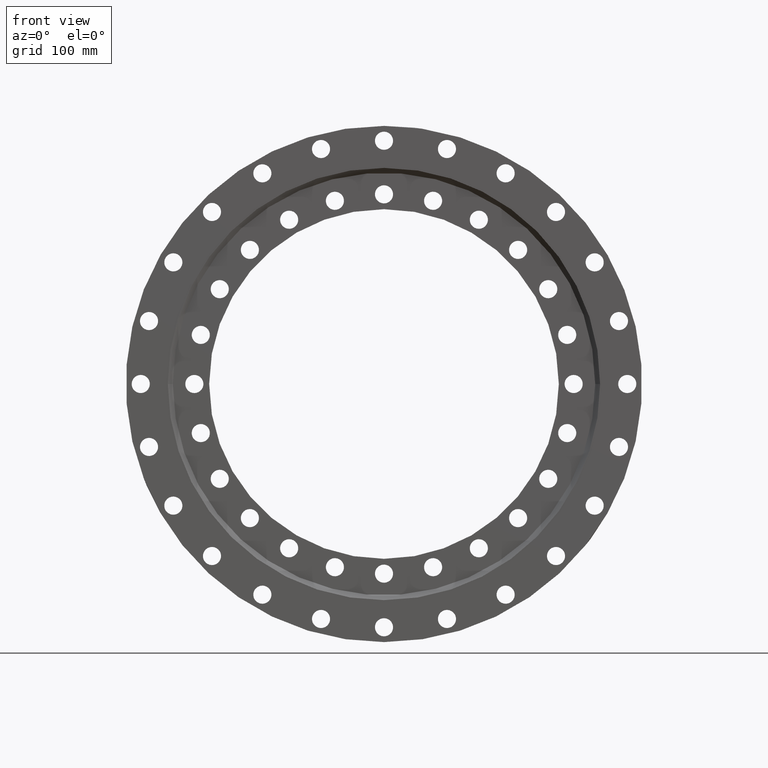
[diagram: clean part render]
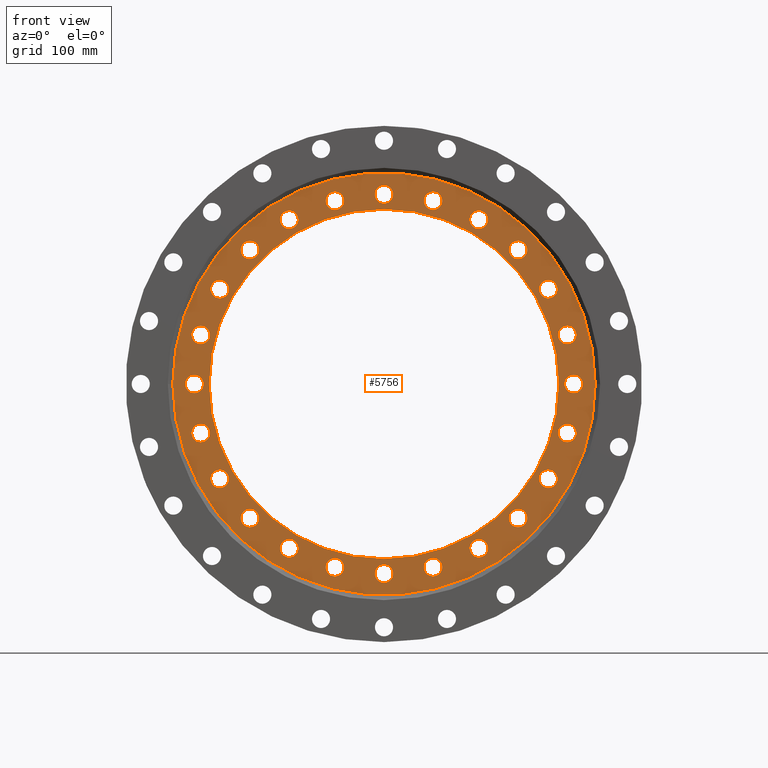
[diagram: same view with one face highlighted and labeled with its STEP entity id]
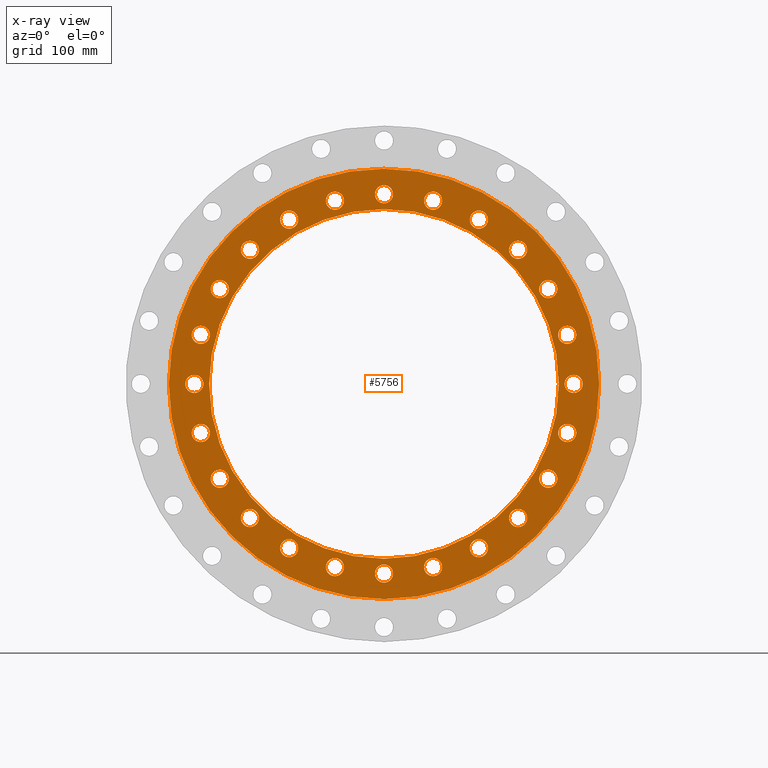
[diagram: x-ray of the same camera — body ghosted, the highlighted face saturated]
A machine part, front view. The second image highlights one B-rep face of the part: STEP entity #5756.
The next image is the same camera in x-ray: the body ghosted, the highlighted face saturated — about 0% of this face is hidden behind the body in this view.
In plain terms, the highlighted planar face has unit normal (-0, 1, -0).
Its self-contained STEP definition (entity closure, byte-faithful):
#34 = AXIS2_PLACEMENT_3D ( 'NONE', #2581, #2655, #503 ) ;
#72 = AXIS2_PLACEMENT_3D ( 'NONE', #2051, #3103, #2125 ) ;
#81 = AXIS2_PLACEMENT_3D ( 'NONE', #5285, #5254, #5266 ) ;
#83 = EDGE_CURVE ( 'NONE', #1986, #4395, #4177, .T. ) ;
#87 = CARTESIAN_POINT ( 'NONE',  ( -230.0000000000000000, -27.00000000000004600, 11.00000000000250300 ) ) ;
#102 = DIRECTION ( 'NONE',  ( 0.7071067811865525700, 0.0000000000000000000, -0.7071067811865424700 ) ) ;
#120 = VERTEX_POINT ( 'NONE', #5295 ) ;
#137 = CARTESIAN_POINT ( 'NONE',  ( -230.0000000000000000, -27.00000000000004600, -10.99999999999749900 ) ) ;
#152 = AXIS2_PLACEMENT_3D ( 'NONE', #1451, #1543, #1533 ) ;
#154 = EDGE_CURVE ( 'NONE', #5328, #1330, #2507, .T. ) ;
#158 = VERTEX_POINT ( 'NONE', #2324 ) ;
#166 = CARTESIAN_POINT ( 'NONE',  ( -222.1629400464850300, -27.00000000000003200, 70.52838037358232300 ) ) ;
#174 = CARTESIAN_POINT ( 'NONE',  ( 230.0000000000000000, -27.00000000000004600, -8.930550670243303100E-013 ) ) ;
#176 = FACE_BOUND ( 'NONE', #2754, .T. ) ;
#194 = EDGE_CURVE ( 'NONE', #2622, #2862, #2386, .T. ) ;
#216 = ORIENTED_EDGE ( 'NONE', *, *, #4190, .T. ) ;
#219 = VERTEX_POINT ( 'NONE', #3167 ) ;
#235 = DIRECTION ( 'NONE',  ( 0.7071067811865400200, 0.0000000000000000000, 0.7071067811865551200 ) ) ;
#261 = VERTEX_POINT ( 'NONE', #2850 ) ;
#298 = ORIENTED_EDGE ( 'NONE', *, *, #3905, .T. ) ;
#307 = AXIS2_PLACEMENT_3D ( 'NONE', #1937, #4606, #4114 ) ;
#311 = ORIENTED_EDGE ( 'NONE', *, *, #3028, .T. ) ;
#319 = AXIS2_PLACEMENT_3D ( 'NONE', #5246, #5248, #5253 ) ;
#354 = AXIS2_PLACEMENT_3D ( 'NONE', #3415, #1686, #4310 ) ;
#355 = CARTESIAN_POINT ( 'NONE',  ( -162.6345596729039200, -27.00000000000003900, 173.6345596729080100 ) ) ;
#366 = ORIENTED_EDGE ( 'NONE', *, *, #2568, .T. ) ;
#371 = CIRCLE ( 'NONE', #34, 11.00000000000000400 ) ;
#379 = DIRECTION ( 'NONE',  ( 9.244463733058732100E-033, 1.000000000000000000, -2.727064569436388400E-017 ) ) ;
#403 = ORIENTED_EDGE ( 'NONE', *, *, #1097, .T. ) ;
#404 = DIRECTION ( 'NONE',  ( -1.540743955509788700E-033, 1.000000000000000000, -2.727064569436389700E-017 ) ) ;
#418 = EDGE_CURVE ( 'NONE', #1330, #5328, #2040, .T. ) ;
#421 = CIRCLE ( 'NONE', #3242, 11.00000000000000000 ) ;
#432 = CIRCLE ( 'NONE', #5852, 10.99999999999999500 ) ;
#437 = EDGE_CURVE ( 'NONE', #1723, #4188, #5084, .T. ) ;
#466 = EDGE_LOOP ( 'NONE', ( #1964, #1066 ) ) ;
#485 = EDGE_CURVE ( 'NONE', #2403, #4164, #4521, .T. ) ;
#503 = DIRECTION ( 'NONE',  ( -0.8660254037844399300, 0.0000000000000000000, 0.4999999999999977200 ) ) ;
#527 = EDGE_CURVE ( 'NONE', #4013, #4661, #2409, .T. ) ;
#543 = DIRECTION ( 'NONE',  ( 0.0000000000000000000, 1.000000000000000000, -2.727064569436389700E-017 ) ) ;
#582 = CARTESIAN_POINT ( 'NONE',  ( -115.0000000000016900, -27.00000000000005300, -199.1858428704199200 ) ) ;
#584 = CIRCLE ( 'NONE', #5718, 11.00000000000001100 ) ;
#601 = CARTESIAN_POINT ( 'NONE',  ( 162.6345596729050300, -27.00000000000005300, -151.6345596729068500 ) ) ;
#604 = EDGE_LOOP ( 'NONE', ( #216, #366 ) ) ;
#623 = EDGE_CURVE ( 'NONE', #4128, #2820, #2611, .T. ) ;
#634 = VERTEX_POINT ( 'NONE', #355 ) ;
#644 = EDGE_CURVE ( 'NONE', #1368, #4068, #5816, .T. ) ;
#672 = CARTESIAN_POINT ( 'NONE',  ( 59.52838037357826600, -27.00000000000005300, -222.1629400464861100 ) ) ;
#675 = VERTEX_POINT ( 'NONE', #2683 ) ;
#678 = CARTESIAN_POINT ( 'NONE',  ( -222.1629400464863700, -27.00000000000004600, -70.52838037357750500 ) ) ;
#681 = EDGE_LOOP ( 'NONE', ( #2114, #2101 ) ) ;
#684 = DIRECTION ( 'NONE',  ( -1.540743955509788700E-033, 1.000000000000000000, -2.727064569436389100E-017 ) ) ;
#690 = DIRECTION ( 'NONE',  ( 0.2588190451025281800, 0.0000000000000000000, -0.9659258262890663100 ) ) ;
#699 = EDGE_CURVE ( 'NONE', #4697, #158, #2421, .T. ) ;
#730 = CARTESIAN_POINT ( 'NONE',  ( 115.0000000000003100, -27.00000000000003900, 188.1858428704206900 ) ) ;
#735 = EDGE_CURVE ( 'NONE', #1204, #3084, #4473, .T. ) ;
#741 = CARTESIAN_POINT ( 'NONE',  ( 3.302913498259840300E-012, -27.00000000000003900, 241.0000000000000300 ) ) ;
#765 = CARTESIAN_POINT ( 'NONE',  ( 162.6345596729050300, -27.00000000000005300, -162.6345596729068500 ) ) ;
#768 = FACE_BOUND ( 'NONE', #1260, .T. ) ;
#773 = CARTESIAN_POINT ( 'NONE',  ( 2.596251214192389200E-014, -27.00000000000005300, -212.0000000000000300 ) ) ;
#787 = DIRECTION ( 'NONE',  ( 0.0000000000000000000, 1.000000000000000000, -2.727064569436390300E-017 ) ) ;
#819 = FACE_BOUND ( 'NONE', #2562, .T. ) ;
#885 = CARTESIAN_POINT ( 'NONE',  ( 199.1858428704203200, -27.00000000000004600, -126.0000000000010200 ) ) ;
#895 = DIRECTION ( 'NONE',  ( 0.0000000000000000000, 0.0000000000000000000, 1.000000000000000000 ) ) ;
#901 = EDGE_CURVE ( 'NONE', #2582, #5563, #584, .T. ) ;
#909 = DIRECTION ( 'NONE',  ( -1.540743955509788700E-033, 1.000000000000000000, -2.727064569436390000E-017 ) ) ;
#916 = EDGE_CURVE ( 'NONE', #5721, #634, #5262, .T. ) ;
#923 = EDGE_CURVE ( 'NONE', #4661, #4013, #432, .T. ) ;
#927 = EDGE_LOOP ( 'NONE', ( #1106, #403 ) ) ;
#942 = CARTESIAN_POINT ( 'NONE',  ( 3.302913498259840300E-012, -27.00000000000003900, 230.0000000000000000 ) ) ;
#949 = FACE_BOUND ( 'NONE', #3996, .T. ) ;
#973 = EDGE_LOOP ( 'NONE', ( #1957, #1939 ) ) ;
#1043 = DIRECTION ( 'NONE',  ( 0.7071067811865525700, 0.0000000000000000000, -0.7071067811865424700 ) ) ;
#1054 = ORIENTED_EDGE ( 'NONE', *, *, #527, .T. ) ;
#1066 = ORIENTED_EDGE ( 'NONE', *, *, #2549, .T. ) ;
#1068 = ORIENTED_EDGE ( 'NONE', *, *, #5727, .T. ) ;
#1071 = DIRECTION ( 'NONE',  ( -3.081487911019577400E-033, 1.000000000000000000, -2.727064569436389700E-017 ) ) ;
#1080 = AXIS2_PLACEMENT_3D ( 'NONE', #1862, #2207, #235 ) ;
#1082 = ORIENTED_EDGE ( 'NONE', *, *, #4048, .T. ) ;
#1083 = FACE_BOUND ( 'NONE', #1472, .T. ) ;
#1097 = EDGE_CURVE ( 'NONE', #5065, #1524, #5838, .T. ) ;
#1106 = ORIENTED_EDGE ( 'NONE', *, *, #4353, .T. ) ;
#1120 = EDGE_LOOP ( 'NONE', ( #2076, #2294 ) ) ;
#1126 = AXIS2_PLACEMENT_3D ( 'NONE', #3987, #2525, #3823 ) ;
#1137 = CARTESIAN_POINT ( 'NONE',  ( -1.695484970912936700E-012, -27.00000000000005300, -241.0000000000000300 ) ) ;
#1146 = CARTESIAN_POINT ( 'NONE',  ( 222.1629400464854600, -27.00000000000004600, -59.52838037358076700 ) ) ;
#1171 = ORIENTED_EDGE ( 'NONE', *, *, #1674, .T. ) ;
#1175 = EDGE_CURVE ( 'NONE', #5392, #2811, #4021, .T. ) ;
#1177 = ORIENTED_EDGE ( 'NONE', *, *, #1955, .T. ) ;
#1181 = ORIENTED_EDGE ( 'NONE', *, *, #1221, .T. ) ;
#1193 = ORIENTED_EDGE ( 'NONE', *, *, #4570, .F. ) ;
#1204 = VERTEX_POINT ( 'NONE', #3309 ) ;
#1206 = ORIENTED_EDGE ( 'NONE', *, *, #4641, .F. ) ;
#1221 = EDGE_CURVE ( 'NONE', #675, #2792, #3404, .T. ) ;
#1228 = EDGE_LOOP ( 'NONE', ( #2325, #1995 ) ) ;
#1229 = FACE_BOUND ( 'NONE', #3444, .T. ) ;
#1233 = CARTESIAN_POINT ( 'NONE',  ( 59.52838037357999900, -27.00000000000003900, 222.1629400464856600 ) ) ;
#1240 = VERTEX_POINT ( 'NONE', #730 ) ;
#1260 = EDGE_LOOP ( 'NONE', ( #2004, #3170 ) ) ;
#1270 = CARTESIAN_POINT ( 'NONE',  ( 230.0000000000000000, -27.00000000000004600, -8.930550670243303100E-013 ) ) ;
#1283 = DIRECTION ( 'NONE',  ( 0.4999999999999888400, 0.0000000000000000000, 0.8660254037844449200 ) ) ;
#1301 = DIRECTION ( 'NONE',  ( -3.081487911019577400E-033, 1.000000000000000000, -2.727064569436389700E-017 ) ) ;
#1312 = DIRECTION ( 'NONE',  ( 1.000000000000000000, 0.0000000000000000000, 1.047444401652938900E-014 ) ) ;
#1314 = EDGE_CURVE ( 'NONE', #158, #4697, #4359, .T. ) ;
#1330 = VERTEX_POINT ( 'NONE', #2938 ) ;
#1358 = FACE_BOUND ( 'NONE', #3035, .T. ) ;
#1368 = VERTEX_POINT ( 'NONE', #137 ) ;
#1413 = CIRCLE ( 'NONE', #1126, 11.00000000000001100 ) ;
#1416 = CARTESIAN_POINT ( 'NONE',  ( 115.0000000000003100, -27.00000000000003900, 199.1858428704207100 ) ) ;
#1422 = ORIENTED_EDGE ( 'NONE', *, *, #916, .T. ) ;
#1423 = CARTESIAN_POINT ( 'NONE',  ( 114.9999999999987800, -27.00000000000005300, -188.1858428704216200 ) ) ;
#1424 = ORIENTED_EDGE ( 'NONE', *, *, #3748, .T. ) ;
#1429 = DIRECTION ( 'NONE',  ( 1.540743955509788700E-033, 1.000000000000000000, -2.727064569436389700E-017 ) ) ;
#1430 = ORIENTED_EDGE ( 'NONE', *, *, #2662, .T. ) ;
#1447 = AXIS2_PLACEMENT_3D ( 'NONE', #2558, #2551, #2180 ) ;
#1451 = CARTESIAN_POINT ( 'NONE',  ( 222.1629400464859400, -27.00000000000003200, 59.52838037357904000 ) ) ;
#1462 = ORIENTED_EDGE ( 'NONE', *, *, #1771, .T. ) ;
#1472 = EDGE_LOOP ( 'NONE', ( #2074, #1462 ) ) ;
#1475 = DIRECTION ( 'NONE',  ( 0.9659258262890708700, 0.0000000000000000000, -0.2588190451025110300 ) ) ;
#1496 = EDGE_CURVE ( 'NONE', #3084, #1204, #4905, .T. ) ;
#1524 = VERTEX_POINT ( 'NONE', #4351 ) ;
#1533 = DIRECTION ( 'NONE',  ( 0.9659258262890655400, 0.0000000000000000000, 0.2588190451025311200 ) ) ;
#1540 = CARTESIAN_POINT ( 'NONE',  ( 162.6345596729050300, -27.00000000000005300, -162.6345596729068500 ) ) ;
#1543 = DIRECTION ( 'NONE',  ( -3.081487911019577400E-033, 1.000000000000000000, -2.727064569436389700E-017 ) ) ;
#1568 = DIRECTION ( 'NONE',  ( 3.081487911019577400E-033, 1.000000000000000000, -2.727064569436389700E-017 ) ) ;
#1585 = VERTEX_POINT ( 'NONE', #2905 ) ;
#1586 = DIRECTION ( 'NONE',  ( 0.0000000000000000000, 1.000000000000000000, -2.727064569436389400E-017 ) ) ;
#1649 = EDGE_LOOP ( 'NONE', ( #1206, #1193 ) ) ;
#1651 = DIRECTION ( 'NONE',  ( 0.5000000000000065500, 0.0000000000000000000, -0.8660254037844348200 ) ) ;
#1654 = AXIS2_PLACEMENT_3D ( 'NONE', #1416, #404, #1283 ) ;
#1673 = DIRECTION ( 'NONE',  ( -1.540743955509788700E-033, 1.000000000000000000, -2.727064569436389700E-017 ) ) ;
#1674 = EDGE_CURVE ( 'NONE', #120, #3547, #421, .T. ) ;
#1675 = VERTEX_POINT ( 'NONE', #1137 ) ;
#1686 = DIRECTION ( 'NONE',  ( -1.540743955509788700E-033, 1.000000000000000000, -2.727064569436390000E-017 ) ) ;
#1691 = CIRCLE ( 'NONE', #1654, 11.00000000000000500 ) ;
#1699 = DIRECTION ( 'NONE',  ( -0.8660254037844366000, 0.0000000000000000000, -0.5000000000000034400 ) ) ;
#1714 = CARTESIAN_POINT ( 'NONE',  ( 199.1858428704203200, -27.00000000000004600, -104.0000000000010200 ) ) ;
#1721 = CIRCLE ( 'NONE', #5301, 11.00000000000001100 ) ;
#1723 = VERTEX_POINT ( 'NONE', #4148 ) ;
#1757 = VERTEX_POINT ( 'NONE', #1942 ) ;
#1767 = EDGE_LOOP ( 'NONE', ( #311, #1430 ) ) ;
#1771 = EDGE_CURVE ( 'NONE', #4764, #4406, #1987, .T. ) ;
#1780 = CARTESIAN_POINT ( 'NONE',  ( 59.52838037357999900, -27.00000000000003900, 233.1629400464856600 ) ) ;
#1797 = DIRECTION ( 'NONE',  ( 3.081487911019577400E-033, 1.000000000000000000, -2.727064569436389700E-017 ) ) ;
#1820 = FACE_BOUND ( 'NONE', #5352, .T. ) ;
#1824 = DIRECTION ( 'NONE',  ( 1.540743955509788700E-033, 1.000000000000000000, -2.727064569436389700E-017 ) ) ;
#1827 = CARTESIAN_POINT ( 'NONE',  ( 59.52838037357999900, -27.00000000000003900, 222.1629400464856600 ) ) ;
#1831 = CARTESIAN_POINT ( 'NONE',  ( 59.52838037357999900, -27.00000000000003900, 211.1629400464856300 ) ) ;
#1840 = DIRECTION ( 'NONE',  ( -0.5000000000000007800, 0.0000000000000000000, 0.8660254037844382600 ) ) ;
#1859 = EDGE_CURVE ( 'NONE', #1675, #3832, #1413, .T. ) ;
#1862 = CARTESIAN_POINT ( 'NONE',  ( 162.6345596729063100, -27.00000000000003900, 162.6345596729055700 ) ) ;
#1922 = EDGE_LOOP ( 'NONE', ( #4027, #1181 ) ) ;
#1937 = CARTESIAN_POINT ( 'NONE',  ( 199.1858428704203200, -27.00000000000004600, -115.0000000000010200 ) ) ;
#1939 = ORIENTED_EDGE ( 'NONE', *, *, #901, .T. ) ;
#1942 = CARTESIAN_POINT ( 'NONE',  ( 222.1629400464859400, -27.00000000000003200, 70.52838037357904000 ) ) ;
#1951 = FACE_BOUND ( 'NONE', #1228, .T. ) ;
#1955 = EDGE_CURVE ( 'NONE', #2389, #3008, #5584, .T. ) ;
#1957 = ORIENTED_EDGE ( 'NONE', *, *, #4011, .T. ) ;
#1962 = ORIENTED_EDGE ( 'NONE', *, *, #485, .T. ) ;
#1964 = ORIENTED_EDGE ( 'NONE', *, *, #3936, .T. ) ;
#1970 = DIRECTION ( 'NONE',  ( 0.9659258262890708700, 0.0000000000000000000, -0.2588190451025110300 ) ) ;
#1974 = ORIENTED_EDGE ( 'NONE', *, *, #2109, .T. ) ;
#1975 = CIRCLE ( 'NONE', #2073, 11.00000000000001600 ) ;
#1986 = VERTEX_POINT ( 'NONE', #601 ) ;
#1987 = CIRCLE ( 'NONE', #3129, 11.00000000000001600 ) ;
#1988 = DIRECTION ( 'NONE',  ( 0.9659258262890655400, 0.0000000000000000000, 0.2588190451025311200 ) ) ;
#1993 = CARTESIAN_POINT ( 'NONE',  ( 222.1629400464854600, -27.00000000000004600, -59.52838037358076700 ) ) ;
#1995 = ORIENTED_EDGE ( 'NONE', *, *, #1175, .T. ) ;
#2003 = DIRECTION ( 'NONE',  ( -3.081487911019577400E-033, 1.000000000000000000, -2.727064569436389100E-017 ) ) ;
#2004 = ORIENTED_EDGE ( 'NONE', *, *, #3527, .T. ) ;
#2009 = ORIENTED_EDGE ( 'NONE', *, *, #418, .T. ) ;
#2011 = DIRECTION ( 'NONE',  ( -3.081487911019577400E-033, 1.000000000000000000, -2.727064569436389700E-017 ) ) ;
#2013 = CIRCLE ( 'NONE', #3804, 11.00000000000000500 ) ;
#2015 = ORIENTED_EDGE ( 'NONE', *, *, #154, .T. ) ;
#2017 = EDGE_CURVE ( 'NONE', #261, #4646, #5591, .T. ) ;
#2037 = CARTESIAN_POINT ( 'NONE',  ( -59.52838037358154800, -27.00000000000005300, -222.1629400464852300 ) ) ;
#2040 = CIRCLE ( 'NONE', #3892, 11.00000000000001600 ) ;
#2051 = CARTESIAN_POINT ( 'NONE',  ( 115.0000000000003100, -27.00000000000003900, 199.1858428704207100 ) ) ;
#2054 = ORIENTED_EDGE ( 'NONE', *, *, #623, .T. ) ;
#2059 = CIRCLE ( 'NONE', #4059, 10.99999999999999800 ) ;
#2068 = CARTESIAN_POINT ( 'NONE',  ( -1.696832082391998900E-012, -27.00000000000005300, -219.0000000000000000 ) ) ;
#2071 = ORIENTED_EDGE ( 'NONE', *, *, #1496, .T. ) ;
#2073 = AXIS2_PLACEMENT_3D ( 'NONE', #3602, #3628, #3331 ) ;
#2074 = ORIENTED_EDGE ( 'NONE', *, *, #2763, .T. ) ;
#2076 = ORIENTED_EDGE ( 'NONE', *, *, #3490, .T. ) ;
#2083 = FACE_BOUND ( 'NONE', #1922, .T. ) ;
#2096 = ORIENTED_EDGE ( 'NONE', *, *, #735, .T. ) ;
#2101 = ORIENTED_EDGE ( 'NONE', *, *, #1314, .T. ) ;
#2109 = EDGE_CURVE ( 'NONE', #4395, #1986, #4514, .T. ) ;
#2114 = ORIENTED_EDGE ( 'NONE', *, *, #699, .T. ) ;
#2125 = DIRECTION ( 'NONE',  ( 0.4999999999999888400, 0.0000000000000000000, 0.8660254037844449200 ) ) ;
#2133 = ORIENTED_EDGE ( 'NONE', *, *, #194, .T. ) ;
#2139 = ORIENTED_EDGE ( 'NONE', *, *, #3108, .T. ) ;
#2154 = CARTESIAN_POINT ( 'NONE',  ( 230.0000000000000000, -27.00000000000004600, -11.00000000000089500 ) ) ;
#2177 = AXIS2_PLACEMENT_3D ( 'NONE', #765, #787, #1043 ) ;
#2180 = DIRECTION ( 'NONE',  ( 0.8660254037844433700, 0.0000000000000000000, -0.4999999999999919500 ) ) ;
#2187 = CIRCLE ( 'NONE', #3207, 11.00000000000000000 ) ;
#2191 = EDGE_LOOP ( 'NONE', ( #2009, #2015 ) ) ;
#2197 = FACE_BOUND ( 'NONE', #1120, .T. ) ;
#2206 = EDGE_LOOP ( 'NONE', ( #4104, #1177 ) ) ;
#2207 = DIRECTION ( 'NONE',  ( -3.081487911019577400E-033, 1.000000000000000000, -2.727064569436389400E-017 ) ) ;
#2209 = FACE_BOUND ( 'NONE', #2191, .T. ) ;
#2232 = AXIS2_PLACEMENT_3D ( 'NONE', #4363, #4361, #4872 ) ;
#2233 = CARTESIAN_POINT ( 'NONE',  ( -162.6345596729074100, -27.00000000000005300, -162.6345596729044600 ) ) ;
#2238 = CIRCLE ( 'NONE', #2372, 11.00000000000000000 ) ;
#2263 = DIRECTION ( 'NONE',  ( 9.244463733058732100E-033, 1.000000000000000000, -2.727064569436389100E-017 ) ) ;
#2278 = ORIENTED_EDGE ( 'NONE', *, *, #2017, .T. ) ;
#2288 = ORIENTED_EDGE ( 'NONE', *, *, #3715, .T. ) ;
#2294 = ORIENTED_EDGE ( 'NONE', *, *, #1859, .T. ) ;
#2297 = ORIENTED_EDGE ( 'NONE', *, *, #3683, .T. ) ;
#2301 = ORIENTED_EDGE ( 'NONE', *, *, #83, .T. ) ;
#2311 = DIRECTION ( 'NONE',  ( 0.0000000000000000000, 1.000000000000000000, -2.727064569436389400E-017 ) ) ;
#2317 = ORIENTED_EDGE ( 'NONE', *, *, #437, .T. ) ;
#2324 = CARTESIAN_POINT ( 'NONE',  ( -162.6345596729074100, -27.00000000000005300, -173.6345596729044900 ) ) ;
#2325 = ORIENTED_EDGE ( 'NONE', *, *, #3863, .T. ) ;
#2327 = FACE_BOUND ( 'NONE', #1767, .T. ) ;
#2328 = CARTESIAN_POINT ( 'NONE',  ( -199.1858428704220800, -27.00000000000004600, -125.9999999999980800 ) ) ;
#2331 = CARTESIAN_POINT ( 'NONE',  ( -222.1629400464863700, -27.00000000000004600, -59.52838037357749800 ) ) ;
#2356 = CIRCLE ( 'NONE', #3121, 11.00000000000001600 ) ;
#2369 = CIRCLE ( 'NONE', #5006, 11.00000000000000500 ) ;
#2372 = AXIS2_PLACEMENT_3D ( 'NONE', #5726, #5229, #5686 ) ;
#2386 = CIRCLE ( 'NONE', #4422, 11.00000000000001600 ) ;
#2389 = VERTEX_POINT ( 'NONE', #4902 ) ;
#2403 = VERTEX_POINT ( 'NONE', #4560 ) ;
#2409 = CIRCLE ( 'NONE', #3995, 10.99999999999999500 ) ;
#2421 = CIRCLE ( 'NONE', #5048, 11.00000000000002000 ) ;
#2454 = AXIS2_PLACEMENT_3D ( 'NONE', #4528, #4621, #4616 ) ;
#2465 = FACE_BOUND ( 'NONE', #3142, .T. ) ;
#2473 = EDGE_CURVE ( 'NONE', #4292, #5069, #4911, .T. ) ;
#2474 = CARTESIAN_POINT ( 'NONE',  ( 59.52838037357826600, -27.00000000000005300, -222.1629400464861100 ) ) ;
#2484 = DIRECTION ( 'NONE',  ( -3.081487911019577400E-033, 1.000000000000000000, -2.727064569436389700E-017 ) ) ;
#2507 = CIRCLE ( 'NONE', #3443, 11.00000000000001600 ) ;
#2525 = DIRECTION ( 'NONE',  ( -2.189528850507526700E-047, 1.000000000000000000, -2.727064569436389100E-017 ) ) ;
#2533 = EDGE_LOOP ( 'NONE', ( #2139, #2133 ) ) ;
#2547 = ORIENTED_EDGE ( 'NONE', *, *, #5071, .T. ) ;
#2549 = EDGE_CURVE ( 'NONE', #3746, #1757, #4921, .T. ) ;
#2551 = DIRECTION ( 'NONE',  ( -3.081487911019577400E-033, 1.000000000000000000, -2.727064569436389100E-017 ) ) ;
#2558 = CARTESIAN_POINT ( 'NONE',  ( 199.1858428704203200, -27.00000000000004600, -115.0000000000010200 ) ) ;
#2562 = EDGE_LOOP ( 'NONE', ( #2301, #1974 ) ) ;
#2566 = DIRECTION ( 'NONE',  ( 0.2588190451025281800, 0.0000000000000000000, -0.9659258262890663100 ) ) ;
#2568 = EDGE_CURVE ( 'NONE', #1240, #5099, #4876, .T. ) ;
#2579 = DIRECTION ( 'NONE',  ( -1.540743955509788700E-033, 1.000000000000000000, -2.727064569436389100E-017 ) ) ;
#2581 = CARTESIAN_POINT ( 'NONE',  ( -199.1858428704195200, -27.00000000000003900, 115.0000000000024000 ) ) ;
#2582 = VERTEX_POINT ( 'NONE', #2154 ) ;
#2611 = CIRCLE ( 'NONE', #4856, 10.99999999999999800 ) ;
#2622 = VERTEX_POINT ( 'NONE', #2328 ) ;
#2625 = CARTESIAN_POINT ( 'NONE',  ( 230.0000000000000000, -27.00000000000004600, 10.99999999999910800 ) ) ;
#2639 = CARTESIAN_POINT ( 'NONE',  ( -222.1629400464863700, -27.00000000000004600, -59.52838037357749800 ) ) ;
#2642 = CIRCLE ( 'NONE', #4843, 11.00000000000001100 ) ;
#2655 = DIRECTION ( 'NONE',  ( 3.081487911019577400E-033, 1.000000000000000000, -2.727064569436389700E-017 ) ) ;
#2662 = EDGE_CURVE ( 'NONE', #1585, #219, #371, .T. ) ;
#2677 = AXIS2_PLACEMENT_3D ( 'NONE', #5124, #5171, #5232 ) ;
#2683 = CARTESIAN_POINT ( 'NONE',  ( 162.6345596729063100, -27.00000000000003900, 151.6345596729055700 ) ) ;
#2719 = CARTESIAN_POINT ( 'NONE',  ( 114.9999999999987800, -27.00000000000005300, -199.1858428704216200 ) ) ;
#2736 = ORIENTED_EDGE ( 'NONE', *, *, #4648, .T. ) ;
#2754 = EDGE_LOOP ( 'NONE', ( #1424, #2054 ) ) ;
#2763 = EDGE_CURVE ( 'NONE', #4406, #4764, #1975, .T. ) ;
#2775 = ORIENTED_EDGE ( 'NONE', *, *, #2473, .T. ) ;
#2782 = AXIS2_PLACEMENT_3D ( 'NONE', #5306, #5366, #1840 ) ;
#2792 = VERTEX_POINT ( 'NONE', #3808 ) ;
#2811 = VERTEX_POINT ( 'NONE', #1714 ) ;
#2820 = VERTEX_POINT ( 'NONE', #166 ) ;
#2849 = AXIS2_PLACEMENT_3D ( 'NONE', #4184, #1824, #4420 ) ;
#2850 = CARTESIAN_POINT ( 'NONE',  ( 59.52838037357826600, -27.00000000000005300, -233.1629400464861400 ) ) ;
#2862 = VERTEX_POINT ( 'NONE', #2958 ) ;
#2905 = CARTESIAN_POINT ( 'NONE',  ( -199.1858428704195200, -27.00000000000003900, 104.0000000000024200 ) ) ;
#2938 = CARTESIAN_POINT ( 'NONE',  ( -222.1629400464863700, -27.00000000000004600, -48.52838037357749800 ) ) ;
#2958 = CARTESIAN_POINT ( 'NONE',  ( -199.1858428704220800, -27.00000000000004600, -103.9999999999981000 ) ) ;
#2966 = CARTESIAN_POINT ( 'NONE',  ( 222.1629400464859400, -27.00000000000003200, 48.52838037357904000 ) ) ;
#2974 = DIRECTION ( 'NONE',  ( -0.9659258262890688700, 0.0000000000000000000, 0.2588190451025181300 ) ) ;
#2978 = DIRECTION ( 'NONE',  ( 3.081487911019577400E-033, 1.000000000000000000, -2.727064569436389400E-017 ) ) ;
#2983 = DIRECTION ( 'NONE',  ( 3.081487911019577400E-033, 1.000000000000000000, -2.727064569436389400E-017 ) ) ;
#2986 = DIRECTION ( 'NONE',  ( 0.0000000000000000000, 1.000000000000000000, -2.727064569436390300E-017 ) ) ;
#2990 = CARTESIAN_POINT ( 'NONE',  ( -222.1629400464850300, -27.00000000000003200, 59.52838037358232300 ) ) ;
#3002 = AXIS2_PLACEMENT_3D ( 'NONE', #4090, #4085, #4022 ) ;
#3006 = CIRCLE ( 'NONE', #152, 11.00000000000000900 ) ;
#3008 = VERTEX_POINT ( 'NONE', #741 ) ;
#3028 = EDGE_CURVE ( 'NONE', #219, #1585, #5156, .T. ) ;
#3035 = EDGE_LOOP ( 'NONE', ( #2736, #2775 ) ) ;
#3053 = CIRCLE ( 'NONE', #3632, 11.00000000000002100 ) ;
#3060 = DIRECTION ( 'NONE',  ( -0.2588190451025145200, 0.0000000000000000000, -0.9659258262890698700 ) ) ;
#3062 = CIRCLE ( 'NONE', #2849, 11.00000000000000700 ) ;
#3084 = VERTEX_POINT ( 'NONE', #5144 ) ;
#3085 = FACE_BOUND ( 'NONE', #4806, .T. ) ;
#3092 = DIRECTION ( 'NONE',  ( -0.7071067811865438000, 0.0000000000000000000, -0.7071067811865513500 ) ) ;
#3095 = DIRECTION ( 'NONE',  ( 3.081487911019577400E-033, 1.000000000000000000, -2.727064569436389400E-017 ) ) ;
#3103 = DIRECTION ( 'NONE',  ( -1.540743955509788700E-033, 1.000000000000000000, -2.727064569436389700E-017 ) ) ;
#3108 = EDGE_CURVE ( 'NONE', #2862, #2622, #2356, .T. ) ;
#3121 = AXIS2_PLACEMENT_3D ( 'NONE', #5190, #4925, #4918 ) ;
#3129 = AXIS2_PLACEMENT_3D ( 'NONE', #2037, #3894, #3060 ) ;
#3142 = EDGE_LOOP ( 'NONE', ( #2297, #2278 ) ) ;
#3154 = DIRECTION ( 'NONE',  ( 0.5000000000000065500, 0.0000000000000000000, -0.8660254037844348200 ) ) ;
#3163 = DIRECTION ( 'NONE',  ( -1.540743955509788700E-033, 1.000000000000000000, -2.727064569436389100E-017 ) ) ;
#3167 = CARTESIAN_POINT ( 'NONE',  ( -199.1858428704195200, -27.00000000000003900, 126.0000000000024200 ) ) ;
#3170 = ORIENTED_EDGE ( 'NONE', *, *, #644, .T. ) ;
#3198 = DIRECTION ( 'NONE',  ( -3.081487911019577400E-033, 1.000000000000000000, -2.727064569436389100E-017 ) ) ;
#3207 = AXIS2_PLACEMENT_3D ( 'NONE', #2474, #2579, #2566 ) ;
#3213 = CARTESIAN_POINT ( 'NONE',  ( -230.0000000000000000, -27.00000000000004600, 2.500609097759667400E-012 ) ) ;
#3235 = FACE_BOUND ( 'NONE', #604, .T. ) ;
#3236 = CIRCLE ( 'NONE', #3915, 11.00000000000001100 ) ;
#3242 = AXIS2_PLACEMENT_3D ( 'NONE', #5282, #2484, #3845 ) ;
#3254 = ORIENTED_EDGE ( 'NONE', *, *, #4308, .T. ) ;
#3309 = CARTESIAN_POINT ( 'NONE',  ( -115.0000000000016900, -27.00000000000005300, -188.1858428704199200 ) ) ;
#3325 = AXIS2_PLACEMENT_3D ( 'NONE', #3967, #1429, #4019 ) ;
#3331 = DIRECTION ( 'NONE',  ( -0.2588190451025145200, 0.0000000000000000000, -0.9659258262890698700 ) ) ;
#3344 = EDGE_CURVE ( 'NONE', #3008, #2389, #4592, .T. ) ;
#3359 = DIRECTION ( 'NONE',  ( 6.982962677686258800E-015, 0.0000000000000000000, -1.000000000000000000 ) ) ;
#3366 = DIRECTION ( 'NONE',  ( -2.189528850507526700E-047, 1.000000000000000000, -2.727064569436389100E-017 ) ) ;
#3367 = CARTESIAN_POINT ( 'NONE',  ( -1.696832082391998900E-012, -27.00000000000005300, -230.0000000000000000 ) ) ;
#3382 = FACE_BOUND ( 'NONE', #2533, .T. ) ;
#3385 = DIRECTION ( 'NONE',  ( -1.540743955509788700E-033, 1.000000000000000000, -2.727064569436389700E-017 ) ) ;
#3404 = CIRCLE ( 'NONE', #1080, 11.00000000000000000 ) ;
#3409 = CARTESIAN_POINT ( 'NONE',  ( -199.1858428704220800, -27.00000000000004600, -114.9999999999981000 ) ) ;
#3415 = CARTESIAN_POINT ( 'NONE',  ( -115.0000000000016900, -27.00000000000005300, -199.1858428704199200 ) ) ;
#3438 = CARTESIAN_POINT ( 'NONE',  ( 199.1858428704212300, -27.00000000000003900, 125.9999999999994700 ) ) ;
#3443 = AXIS2_PLACEMENT_3D ( 'NONE', #2331, #4476, #3564 ) ;
#3444 = EDGE_LOOP ( 'NONE', ( #3254, #1422 ) ) ;
#3466 = DIRECTION ( 'NONE',  ( -1.000000000000000000, 0.0000000000000000000, -3.491481338843147200E-015 ) ) ;
#3471 = DIRECTION ( 'NONE',  ( 3.081487911019577400E-033, 1.000000000000000000, -2.727064569436389400E-017 ) ) ;
#3477 = CARTESIAN_POINT ( 'NONE',  ( -230.0000000000000000, -27.00000000000004600, 2.500609097759667400E-012 ) ) ;
#3483 = AXIS2_PLACEMENT_3D ( 'NONE', #1540, #2986, #102 ) ;
#3490 = EDGE_CURVE ( 'NONE', #3832, #1675, #3236, .T. ) ;
#3494 = CIRCLE ( 'NONE', #2454, 260.9125000000000200 ) ;
#3498 = CARTESIAN_POINT ( 'NONE',  ( 0.0000000000000000000, -27.00000000000003900, 212.0000000000000300 ) ) ;
#3527 = EDGE_CURVE ( 'NONE', #4068, #1368, #2642, .T. ) ;
#3528 = VERTEX_POINT ( 'NONE', #3498 ) ;
#3547 = VERTEX_POINT ( 'NONE', #3438 ) ;
#3557 = CARTESIAN_POINT ( 'NONE',  ( -59.52838037358154800, -27.00000000000005300, -211.1629400464852300 ) ) ;
#3564 = DIRECTION ( 'NONE',  ( -0.9659258262890673100, 0.0000000000000000000, -0.2588190451025246300 ) ) ;
#3583 = CARTESIAN_POINT ( 'NONE',  ( -114.9999999999973900, -27.00000000000003900, 188.1858428704223900 ) ) ;
#3599 = DIRECTION ( 'NONE',  ( -0.7071067811865486800, 0.0000000000000000000, 0.7071067811865462400 ) ) ;
#3602 = CARTESIAN_POINT ( 'NONE',  ( -59.52838037358154800, -27.00000000000005300, -222.1629400464852300 ) ) ;
#3628 = DIRECTION ( 'NONE',  ( 1.540743955509788700E-033, 1.000000000000000000, -2.727064569436389100E-017 ) ) ;
#3629 = CARTESIAN_POINT ( 'NONE',  ( 0.0000000000000000000, -27.00000000000003900, 212.0000000000000300 ) ) ;
#3632 = AXIS2_PLACEMENT_3D ( 'NONE', #3986, #1797, #3599 ) ;
#3639 = CIRCLE ( 'NONE', #4809, 11.00000000000000000 ) ;
#3675 = DIRECTION ( 'NONE',  ( 1.000000000000000000, 0.0000000000000000000, 1.047444401652938900E-014 ) ) ;
#3677 = DIRECTION ( 'NONE',  ( 0.0000000000000000000, 2.727064569436389700E-017, 1.000000000000000000 ) ) ;
#3683 = EDGE_CURVE ( 'NONE', #4646, #261, #2187, .T. ) ;
#3709 = CIRCLE ( 'NONE', #319, 212.0000000000000300 ) ;
#3715 = EDGE_CURVE ( 'NONE', #4188, #1723, #2013, .T. ) ;
#3746 = VERTEX_POINT ( 'NONE', #2966 ) ;
#3748 = EDGE_CURVE ( 'NONE', #2820, #4128, #2059, .T. ) ;
#3796 = CIRCLE ( 'NONE', #81, 260.9125000000000200 ) ;
#3804 = AXIS2_PLACEMENT_3D ( 'NONE', #2719, #3163, #3154 ) ;
#3808 = CARTESIAN_POINT ( 'NONE',  ( 162.6345596729063100, -27.00000000000003900, 173.6345596729056000 ) ) ;
#3823 = DIRECTION ( 'NONE',  ( 6.982962677686258800E-015, 0.0000000000000000000, -1.000000000000000000 ) ) ;
#3832 = VERTEX_POINT ( 'NONE', #2068 ) ;
#3845 = DIRECTION ( 'NONE',  ( 0.8660254037844326000, 0.0000000000000000000, 0.5000000000000105500 ) ) ;
#3862 = CIRCLE ( 'NONE', #2782, 10.99999999999999500 ) ;
#3863 = EDGE_CURVE ( 'NONE', #2811, #5392, #3945, .T. ) ;
#3892 = AXIS2_PLACEMENT_3D ( 'NONE', #2639, #2263, #4513 ) ;
#3894 = DIRECTION ( 'NONE',  ( 1.540743955509788700E-033, 1.000000000000000000, -2.727064569436389100E-017 ) ) ;
#3905 = EDGE_CURVE ( 'NONE', #4164, #2403, #2369, .T. ) ;
#3915 = AXIS2_PLACEMENT_3D ( 'NONE', #3367, #3366, #3359 ) ;
#3916 = AXIS2_PLACEMENT_3D ( 'NONE', #5035, #4588, #1651 ) ;
#3923 = AXIS2_PLACEMENT_3D ( 'NONE', #1146, #3198, #1475 ) ;
#3936 = EDGE_CURVE ( 'NONE', #1757, #3746, #3006, .T. ) ;
#3938 = DIRECTION ( 'NONE',  ( -0.4999999999999947300, 0.0000000000000000000, -0.8660254037844417100 ) ) ;
#3945 = CIRCLE ( 'NONE', #1447, 10.99999999999999300 ) ;
#3948 = FACE_BOUND ( 'NONE', #5131, .T. ) ;
#3967 = CARTESIAN_POINT ( 'NONE',  ( -59.52838037357672400, -27.00000000000003900, 222.1629400464865400 ) ) ;
#3986 = CARTESIAN_POINT ( 'NONE',  ( -162.6345596729039200, -27.00000000000003900, 162.6345596729079800 ) ) ;
#3987 = CARTESIAN_POINT ( 'NONE',  ( -1.696832082391998900E-012, -27.00000000000005300, -230.0000000000000000 ) ) ;
#3995 = AXIS2_PLACEMENT_3D ( 'NONE', #1233, #3385, #5196 ) ;
#3996 = EDGE_LOOP ( 'NONE', ( #1082, #1171 ) ) ;
#4011 = EDGE_CURVE ( 'NONE', #5563, #2582, #1721, .T. ) ;
#4013 = VERTEX_POINT ( 'NONE', #1780 ) ;
#4019 = DIRECTION ( 'NONE',  ( -0.2588190451025210700, 0.0000000000000000000, 0.9659258262890680900 ) ) ;
#4021 = CIRCLE ( 'NONE', #307, 10.99999999999999300 ) ;
#4022 = DIRECTION ( 'NONE',  ( 0.0000000000000000000, 0.0000000000000000000, 1.000000000000000000 ) ) ;
#4027 = ORIENTED_EDGE ( 'NONE', *, *, #4077, .T. ) ;
#4048 = EDGE_CURVE ( 'NONE', #3547, #120, #2238, .T. ) ;
#4059 = AXIS2_PLACEMENT_3D ( 'NONE', #2990, #2983, #2974 ) ;
#4068 = VERTEX_POINT ( 'NONE', #87 ) ;
#4077 = EDGE_CURVE ( 'NONE', #2792, #675, #3639, .T. ) ;
#4085 = DIRECTION ( 'NONE',  ( 0.0000000000000000000, 1.000000000000000000, -2.727064569436389700E-017 ) ) ;
#4088 = DIRECTION ( 'NONE',  ( -0.0000000000000000000, 1.000000000000000000, -2.727064569436389700E-017 ) ) ;
#4090 = CARTESIAN_POINT ( 'NONE',  ( 3.302913498259840300E-012, -27.00000000000003900, 230.0000000000000000 ) ) ;
#4104 = ORIENTED_EDGE ( 'NONE', *, *, #3344, .T. ) ;
#4114 = DIRECTION ( 'NONE',  ( 0.8660254037844433700, 0.0000000000000000000, -0.4999999999999919500 ) ) ;
#4124 = PLANE ( 'NONE',  #5128 ) ;
#4128 = VERTEX_POINT ( 'NONE', #4860 ) ;
#4136 = FACE_BOUND ( 'NONE', #927, .T. ) ;
#4148 = CARTESIAN_POINT ( 'NONE',  ( 114.9999999999987800, -27.00000000000005300, -210.1858428704216200 ) ) ;
#4161 = CARTESIAN_POINT ( 'NONE',  ( -162.6345596729039200, -27.00000000000003900, 151.6345596729079800 ) ) ;
#4163 = DIRECTION ( 'NONE',  ( -0.7071067811865486800, 0.0000000000000000000, 0.7071067811865462400 ) ) ;
#4164 = VERTEX_POINT ( 'NONE', #4719 ) ;
#4177 = CIRCLE ( 'NONE', #3483, 11.00000000000000000 ) ;
#4184 = CARTESIAN_POINT ( 'NONE',  ( -59.52838037357672400, -27.00000000000003900, 222.1629400464865400 ) ) ;
#4188 = VERTEX_POINT ( 'NONE', #1423 ) ;
#4190 = EDGE_CURVE ( 'NONE', #5099, #1240, #1691, .T. ) ;
#4241 = CARTESIAN_POINT ( 'NONE',  ( -222.1629400464850300, -27.00000000000003200, 59.52838037358232300 ) ) ;
#4287 = FACE_BOUND ( 'NONE', #973, .T. ) ;
#4291 = CARTESIAN_POINT ( 'NONE',  ( 162.6345596729050300, -27.00000000000005300, -173.6345596729068700 ) ) ;
#4292 = VERTEX_POINT ( 'NONE', #3583 ) ;
#4302 = DIRECTION ( 'NONE',  ( 0.2588190451025080800, 0.0000000000000000000, 0.9659258262890717500 ) ) ;
#4308 = EDGE_CURVE ( 'NONE', #634, #5721, #3053, .T. ) ;
#4310 = DIRECTION ( 'NONE',  ( -0.4999999999999947300, 0.0000000000000000000, -0.8660254037844417100 ) ) ;
#4351 = CARTESIAN_POINT ( 'NONE',  ( -59.52838037357672400, -27.00000000000003900, 233.1629400464865400 ) ) ;
#4353 = EDGE_CURVE ( 'NONE', #1524, #5065, #3062, .T. ) ;
#4359 = CIRCLE ( 'NONE', #4936, 11.00000000000002000 ) ;
#4361 = DIRECTION ( 'NONE',  ( 3.081487911019577400E-033, 1.000000000000000000, -2.727064569436389700E-017 ) ) ;
#4363 = CARTESIAN_POINT ( 'NONE',  ( -199.1858428704195200, -27.00000000000003900, 115.0000000000024000 ) ) ;
#4395 = VERTEX_POINT ( 'NONE', #4291 ) ;
#4406 = VERTEX_POINT ( 'NONE', #3557 ) ;
#4418 = ORIENTED_EDGE ( 'NONE', *, *, #923, .T. ) ;
#4420 = DIRECTION ( 'NONE',  ( -0.2588190451025210700, 0.0000000000000000000, 0.9659258262890680900 ) ) ;
#4422 = AXIS2_PLACEMENT_3D ( 'NONE', #3409, #379, #1699 ) ;
#4441 = FACE_BOUND ( 'NONE', #4496, .T. ) ;
#4452 = DIRECTION ( 'NONE',  ( -0.9659258262890688700, 0.0000000000000000000, 0.2588190451025181300 ) ) ;
#4473 = CIRCLE ( 'NONE', #5240, 11.00000000000001400 ) ;
#4476 = DIRECTION ( 'NONE',  ( 9.244463733058732100E-033, 1.000000000000000000, -2.727064569436389100E-017 ) ) ;
#4496 = EDGE_LOOP ( 'NONE', ( #2288, #2317 ) ) ;
#4501 = AXIS2_PLACEMENT_3D ( 'NONE', #672, #684, #690 ) ;
#4513 = DIRECTION ( 'NONE',  ( -0.9659258262890673100, 0.0000000000000000000, -0.2588190451025246300 ) ) ;
#4514 = CIRCLE ( 'NONE', #2177, 11.00000000000000000 ) ;
#4521 = CIRCLE ( 'NONE', #3923, 11.00000000000000500 ) ;
#4528 = CARTESIAN_POINT ( 'NONE',  ( 0.0000000000000000000, -27.00000000000004600, -1.098763298320850900E-016 ) ) ;
#4560 = CARTESIAN_POINT ( 'NONE',  ( 222.1629400464854600, -27.00000000000004600, -70.52838037358076000 ) ) ;
#4570 = EDGE_CURVE ( 'NONE', #4711, #5157, #3796, .T. ) ;
#4588 = DIRECTION ( 'NONE',  ( -1.540743955509788700E-033, 1.000000000000000000, -2.727064569436389100E-017 ) ) ;
#4592 = CIRCLE ( 'NONE', #3002, 11.00000000000001100 ) ;
#4595 = CARTESIAN_POINT ( 'NONE',  ( 59.52838037357826600, -27.00000000000005300, -211.1629400464861100 ) ) ;
#4597 = FACE_BOUND ( 'NONE', #681, .T. ) ;
#4606 = DIRECTION ( 'NONE',  ( -3.081487911019577400E-033, 1.000000000000000000, -2.727064569436389100E-017 ) ) ;
#4616 = DIRECTION ( 'NONE',  ( 0.0000000000000000000, 2.659471625126135400E-017, 1.000000000000000000 ) ) ;
#4621 = DIRECTION ( 'NONE',  ( -0.0000000000000000000, 1.000000000000000000, -2.727064569436389700E-017 ) ) ;
#4637 = CARTESIAN_POINT ( 'NONE',  ( -162.6345596729074100, -27.00000000000005300, -151.6345596729044600 ) ) ;
#4641 = EDGE_CURVE ( 'NONE', #5157, #4711, #3494, .T. ) ;
#4646 = VERTEX_POINT ( 'NONE', #4595 ) ;
#4648 = EDGE_CURVE ( 'NONE', #5069, #4292, #3862, .T. ) ;
#4654 = CARTESIAN_POINT ( 'NONE',  ( -162.6345596729039200, -27.00000000000003900, 162.6345596729079800 ) ) ;
#4661 = VERTEX_POINT ( 'NONE', #1831 ) ;
#4697 = VERTEX_POINT ( 'NONE', #4637 ) ;
#4711 = VERTEX_POINT ( 'NONE', #4762 ) ;
#4719 = CARTESIAN_POINT ( 'NONE',  ( 222.1629400464854600, -27.00000000000004600, -48.52838037358076700 ) ) ;
#4761 = CARTESIAN_POINT ( 'NONE',  ( -59.52838037358154800, -27.00000000000005300, -233.1629400464852300 ) ) ;
#4762 = CARTESIAN_POINT ( 'NONE',  ( 3.195256579825338400E-014, -27.00000000000005300, -260.9125000000000200 ) ) ;
#4764 = VERTEX_POINT ( 'NONE', #4761 ) ;
#4781 = EDGE_LOOP ( 'NONE', ( #1054, #4418 ) ) ;
#4806 = EDGE_LOOP ( 'NONE', ( #298, #1962 ) ) ;
#4809 = AXIS2_PLACEMENT_3D ( 'NONE', #5541, #5460, #5548 ) ;
#4822 = DIRECTION ( 'NONE',  ( -1.000000000000000000, 0.0000000000000000000, -3.491481338843147200E-015 ) ) ;
#4824 = FACE_OUTER_BOUND ( 'NONE', #1649, .T. ) ;
#4826 = CARTESIAN_POINT ( 'NONE',  ( -114.9999999999973900, -27.00000000000003900, 210.1858428704224200 ) ) ;
#4843 = AXIS2_PLACEMENT_3D ( 'NONE', #3477, #3471, #3466 ) ;
#4856 = AXIS2_PLACEMENT_3D ( 'NONE', #4241, #3095, #4452 ) ;
#4860 = CARTESIAN_POINT ( 'NONE',  ( -222.1629400464850300, -27.00000000000003200, 48.52838037358232300 ) ) ;
#4872 = DIRECTION ( 'NONE',  ( -0.8660254037844399300, 0.0000000000000000000, 0.4999999999999977200 ) ) ;
#4876 = CIRCLE ( 'NONE', #72, 11.00000000000000500 ) ;
#4891 = AXIS2_PLACEMENT_3D ( 'NONE', #3213, #2978, #4822 ) ;
#4902 = CARTESIAN_POINT ( 'NONE',  ( 3.304260609738902500E-012, -27.00000000000003900, 219.0000000000000000 ) ) ;
#4905 = CIRCLE ( 'NONE', #354, 11.00000000000001400 ) ;
#4911 = CIRCLE ( 'NONE', #5705, 10.99999999999999500 ) ;
#4918 = DIRECTION ( 'NONE',  ( -0.8660254037844366000, 0.0000000000000000000, -0.5000000000000034400 ) ) ;
#4921 = CIRCLE ( 'NONE', #5225, 11.00000000000000900 ) ;
#4925 = DIRECTION ( 'NONE',  ( 9.244463733058732100E-033, 1.000000000000000000, -2.727064569436388400E-017 ) ) ;
#4936 = AXIS2_PLACEMENT_3D ( 'NONE', #5308, #2311, #5037 ) ;
#5006 = AXIS2_PLACEMENT_3D ( 'NONE', #1993, #2003, #1970 ) ;
#5031 = CIRCLE ( 'NONE', #2677, 212.0000000000000300 ) ;
#5035 = CARTESIAN_POINT ( 'NONE',  ( 114.9999999999987800, -27.00000000000005300, -199.1858428704216200 ) ) ;
#5037 = DIRECTION ( 'NONE',  ( -0.7071067811865438000, 0.0000000000000000000, -0.7071067811865513500 ) ) ;
#5048 = AXIS2_PLACEMENT_3D ( 'NONE', #2233, #1586, #3092 ) ;
#5065 = VERTEX_POINT ( 'NONE', #5161 ) ;
#5069 = VERTEX_POINT ( 'NONE', #4826 ) ;
#5071 = EDGE_CURVE ( 'NONE', #5365, #3528, #3709, .T. ) ;
#5084 = CIRCLE ( 'NONE', #3916, 11.00000000000000500 ) ;
#5086 = DIRECTION ( 'NONE',  ( 1.540743955509788700E-033, 1.000000000000000000, -2.727064569436389700E-017 ) ) ;
#5099 = VERTEX_POINT ( 'NONE', #5327 ) ;
#5116 = CARTESIAN_POINT ( 'NONE',  ( -114.9999999999973900, -27.00000000000003900, 199.1858428704223900 ) ) ;
#5124 = CARTESIAN_POINT ( 'NONE',  ( 0.0000000000000000000, -27.00000000000004600, -1.098763298320850900E-016 ) ) ;
#5128 = AXIS2_PLACEMENT_3D ( 'NONE', #3629, #4088, #3677 ) ;
#5131 = EDGE_LOOP ( 'NONE', ( #2096, #2071 ) ) ;
#5139 = DIRECTION ( 'NONE',  ( -0.5000000000000007800, 0.0000000000000000000, 0.8660254037844382600 ) ) ;
#5144 = CARTESIAN_POINT ( 'NONE',  ( -115.0000000000016900, -27.00000000000005300, -210.1858428704199500 ) ) ;
#5156 = CIRCLE ( 'NONE', #2232, 11.00000000000000400 ) ;
#5157 = VERTEX_POINT ( 'NONE', #5719 ) ;
#5161 = CARTESIAN_POINT ( 'NONE',  ( -59.52838037357672400, -27.00000000000003900, 211.1629400464865400 ) ) ;
#5171 = DIRECTION ( 'NONE',  ( -0.0000000000000000000, 1.000000000000000000, -2.727064569436389700E-017 ) ) ;
#5190 = CARTESIAN_POINT ( 'NONE',  ( -199.1858428704220800, -27.00000000000004600, -114.9999999999981000 ) ) ;
#5196 = DIRECTION ( 'NONE',  ( 0.2588190451025080800, 0.0000000000000000000, 0.9659258262890717500 ) ) ;
#5225 = AXIS2_PLACEMENT_3D ( 'NONE', #5249, #2011, #1988 ) ;
#5229 = DIRECTION ( 'NONE',  ( -3.081487911019577400E-033, 1.000000000000000000, -2.727064569436389700E-017 ) ) ;
#5232 = DIRECTION ( 'NONE',  ( 0.0000000000000000000, 3.273063162220390300E-017, 1.000000000000000000 ) ) ;
#5240 = AXIS2_PLACEMENT_3D ( 'NONE', #582, #909, #3938 ) ;
#5246 = CARTESIAN_POINT ( 'NONE',  ( 0.0000000000000000000, -27.00000000000004600, -1.098763298320850900E-016 ) ) ;
#5248 = DIRECTION ( 'NONE',  ( -0.0000000000000000000, 1.000000000000000000, -2.727064569436389700E-017 ) ) ;
#5249 = CARTESIAN_POINT ( 'NONE',  ( 222.1629400464859400, -27.00000000000003200, 59.52838037357904000 ) ) ;
#5253 = DIRECTION ( 'NONE',  ( 0.0000000000000000000, 3.273063162220390300E-017, 1.000000000000000000 ) ) ;
#5254 = DIRECTION ( 'NONE',  ( -0.0000000000000000000, 1.000000000000000000, -2.727064569436389700E-017 ) ) ;
#5262 = CIRCLE ( 'NONE', #5764, 11.00000000000002100 ) ;
#5266 = DIRECTION ( 'NONE',  ( 0.0000000000000000000, 2.659471625126135400E-017, 1.000000000000000000 ) ) ;
#5282 = CARTESIAN_POINT ( 'NONE',  ( 199.1858428704212300, -27.00000000000003900, 114.9999999999994600 ) ) ;
#5285 = CARTESIAN_POINT ( 'NONE',  ( 0.0000000000000000000, -27.00000000000004600, -1.098763298320850900E-016 ) ) ;
#5295 = CARTESIAN_POINT ( 'NONE',  ( 199.1858428704212300, -27.00000000000003900, 103.9999999999994700 ) ) ;
#5301 = AXIS2_PLACEMENT_3D ( 'NONE', #1270, #1301, #1312 ) ;
#5306 = CARTESIAN_POINT ( 'NONE',  ( -114.9999999999973900, -27.00000000000003900, 199.1858428704223900 ) ) ;
#5308 = CARTESIAN_POINT ( 'NONE',  ( -162.6345596729074100, -27.00000000000005300, -162.6345596729044600 ) ) ;
#5327 = CARTESIAN_POINT ( 'NONE',  ( 115.0000000000003100, -27.00000000000003900, 210.1858428704207100 ) ) ;
#5328 = VERTEX_POINT ( 'NONE', #678 ) ;
#5352 = EDGE_LOOP ( 'NONE', ( #1068, #2547 ) ) ;
#5365 = VERTEX_POINT ( 'NONE', #773 ) ;
#5366 = DIRECTION ( 'NONE',  ( 1.540743955509788700E-033, 1.000000000000000000, -2.727064569436389700E-017 ) ) ;
#5371 = FACE_BOUND ( 'NONE', #2206, .T. ) ;
#5392 = VERTEX_POINT ( 'NONE', #885 ) ;
#5460 = DIRECTION ( 'NONE',  ( -3.081487911019577400E-033, 1.000000000000000000, -2.727064569436389400E-017 ) ) ;
#5540 = FACE_BOUND ( 'NONE', #466, .T. ) ;
#5541 = CARTESIAN_POINT ( 'NONE',  ( 162.6345596729063100, -27.00000000000003900, 162.6345596729055700 ) ) ;
#5548 = DIRECTION ( 'NONE',  ( 0.7071067811865400200, 0.0000000000000000000, 0.7071067811865551200 ) ) ;
#5563 = VERTEX_POINT ( 'NONE', #2625 ) ;
#5584 = CIRCLE ( 'NONE', #5762, 11.00000000000001100 ) ;
#5591 = CIRCLE ( 'NONE', #4501, 11.00000000000000000 ) ;
#5686 = DIRECTION ( 'NONE',  ( 0.8660254037844326000, 0.0000000000000000000, 0.5000000000000105500 ) ) ;
#5705 = AXIS2_PLACEMENT_3D ( 'NONE', #5116, #5086, #5139 ) ;
#5718 = AXIS2_PLACEMENT_3D ( 'NONE', #174, #1071, #3675 ) ;
#5719 = CARTESIAN_POINT ( 'NONE',  ( 0.0000000000000000000, -27.00000000000003900, 260.9125000000000200 ) ) ;
#5721 = VERTEX_POINT ( 'NONE', #4161 ) ;
#5724 = FACE_BOUND ( 'NONE', #4781, .T. ) ;
#5726 = CARTESIAN_POINT ( 'NONE',  ( 199.1858428704212300, -27.00000000000003900, 114.9999999999994600 ) ) ;
#5727 = EDGE_CURVE ( 'NONE', #3528, #5365, #5031, .T. ) ;
#5756 = ADVANCED_FACE ( 'NONE', ( #1358, #1229, #2327, #176, #768, #2209, #3382, #4597, #3948, #1083, #2197, #2465, #4441, #819, #1951, #3085, #4287, #5540, #949, #2083, #3235, #5724, #4136, #5371, #4824, #1820 ), #4124, .F. ) ;
#5762 = AXIS2_PLACEMENT_3D ( 'NONE', #942, #543, #895 ) ;
#5764 = AXIS2_PLACEMENT_3D ( 'NONE', #4654, #1568, #4163 ) ;
#5816 = CIRCLE ( 'NONE', #4891, 11.00000000000001100 ) ;
#5838 = CIRCLE ( 'NONE', #3325, 11.00000000000000700 ) ;
#5852 = AXIS2_PLACEMENT_3D ( 'NONE', #1827, #1673, #4302 ) ;